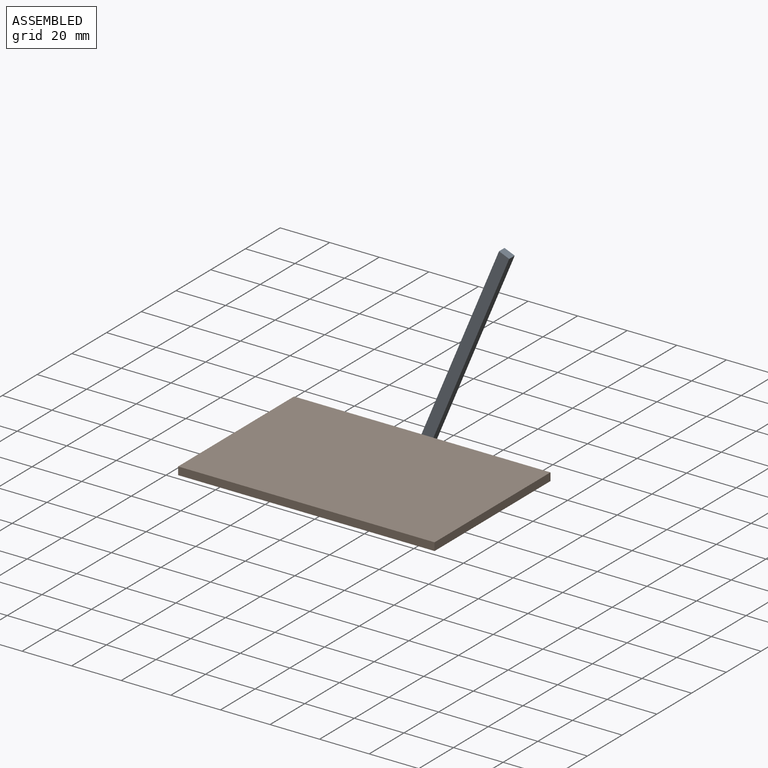
[diagram: assembled view]
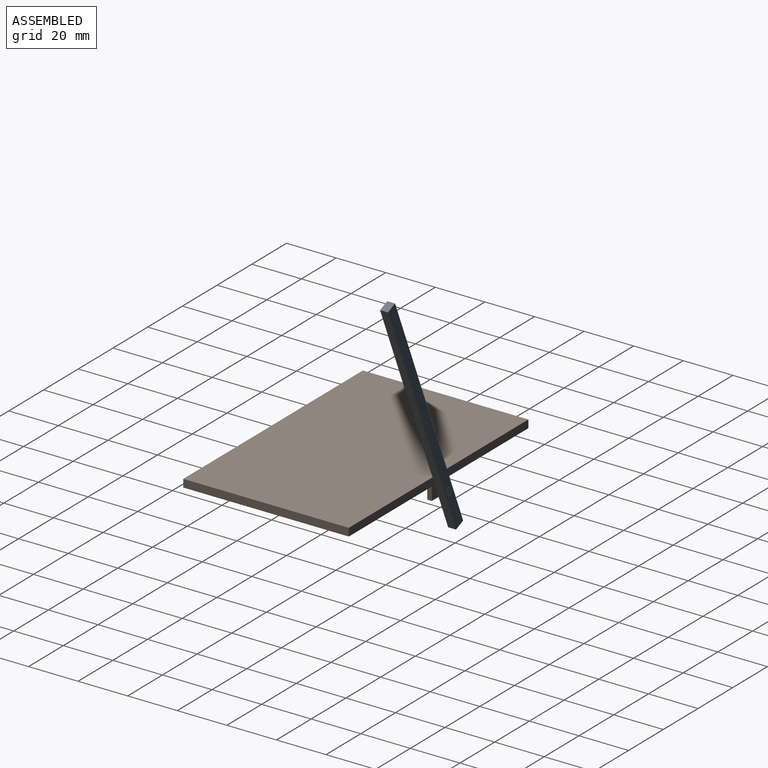
[diagram: assembled view, second angle]
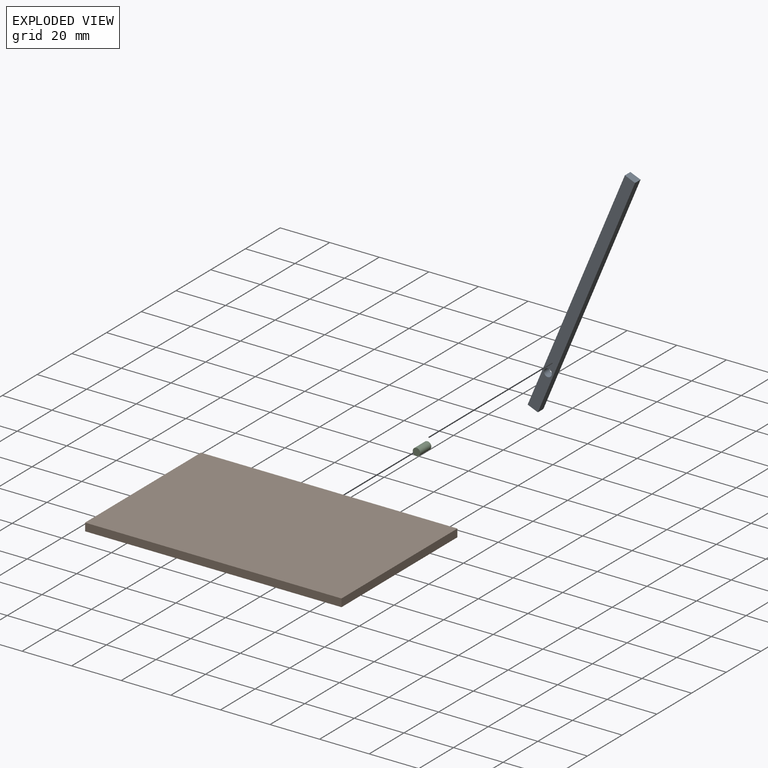
[diagram: exploded view]
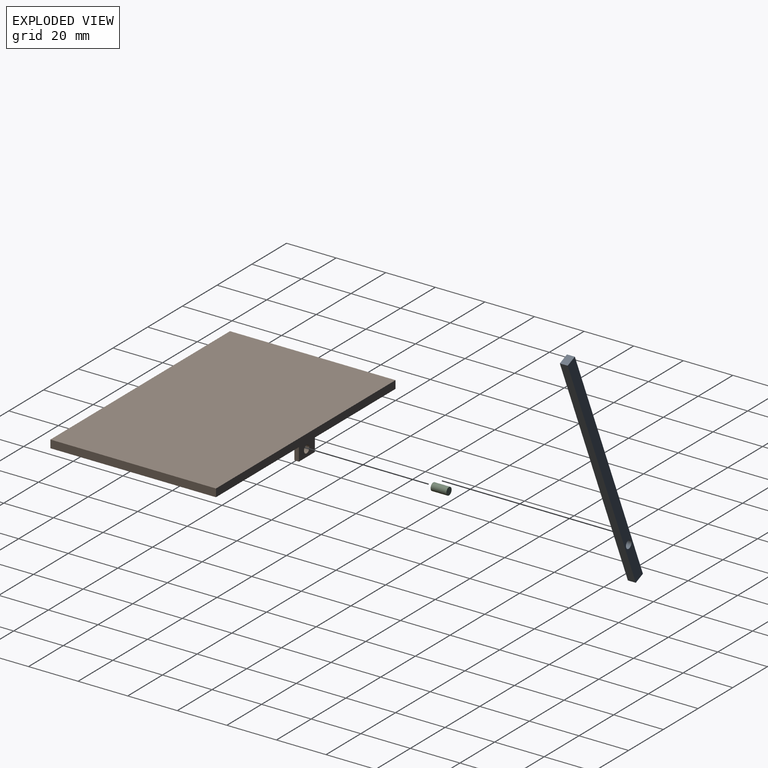
[diagram: exploded view, second angle]
ASSEMBLY  parts=3 mates=2
PART A: 7 faces, bbox 4.5x3.2x101.9 mm
  f0: plane 4.45x3.18mm, normal (0,0,1), area 14.1mm2, adj f1,f3,f4,f5
  f1: plane 101.95x3.18mm, normal (-1,0,0), area 323.7mm2, adj f0,f2,f4,f5
  f2: plane 4.45x3.18mm, normal (0,0,-1), area 14.1mm2, adj f1,f3,f4,f5
  f3: plane 101.95x3.18mm, normal (1,0,0), area 323.7mm2, adj f0,f2,f4,f5
  f4: plane 101.95x4.45mm, normal (0,-1,0), area 445.8mm2, adj f0,f1,f2,f3,f6
  f5: plane 101.95x4.45mm, normal (0,1,0), area 445.8mm2, adj f0,f1,f2,f3,f6
  f6: cylinder r=1.59mm len=3.18mm, axis (0,-1,0), area 31.7mm2, adj f4,f5
PART B: 11 faces, bbox 103.4x66.8x8.5 mm
  f0: plane 103.43x8.46mm, normal (0,1,0), area 369.5mm2, adj f1,f3,f4,f5,f7,f8,f9,f10
  f1: plane 66.76x3.18mm, normal (-1,0,0), area 212mm2, adj f0,f2,f4,f5
  f2: plane 103.43x3.18mm, normal (0,-1,0), area 328.4mm2, adj f1,f3,f4,f5
  f3: plane 66.76x3.18mm, normal (1,0,0), area 212mm2, adj f0,f2,f4,f5
  f4: plane 103.43x66.76mm, normal (0,0,1), area 6905.3mm2, adj f0,f1,f2,f3
  f5: plane 103.43x66.76mm, normal (0,0,-1), area 6888.4mm2, adj f0,f1,f2,f3,f6,f7,f8
  f6: plane 9.16x5.28mm, normal (0,-1,0), area 41.1mm2, adj f5,f7,f8,f9,f10
  f7: plane 5.28x1.85mm, normal (-1,0,0), area 9.8mm2, adj f0,f5,f6,f9
  f8: plane 5.28x1.85mm, normal (1,0,0), area 9.8mm2, adj f0,f5,f6,f9
  f9: plane 9.16x1.85mm, normal (0,0,-1), area 17mm2, adj f0,f6,f7,f8
  f10: cylinder r=1.52mm len=3.05mm, axis (0,-1,0), area 17.7mm2, adj f0,f6
PART C: 3 faces, bbox 3x6.4x3 mm
  f0: cylinder r=1.52mm len=6.35mm, axis (0,1,0), area 60.8mm2, adj f1,f2
  f1: plane 3.05x3.05mm, normal (0,-1,0), area 7.3mm2, adj f0
  f2: plane 3.05x3.05mm, normal (0,1,0), area 7.3mm2, adj f0
PLACE A rot(axis=(0,1,0),22.6deg) t=(0.42,37.19,-3.32)mm
PLACE B rot(axis=(0,1,0),0deg) t=(-0.53,36.56,-3.18)mm
PLACE C rot(axis=(0,-1,0),157.4deg) t=(-1.52,37.19,-7.98)mm
MATE revolute C.f0 <-> B.f10  axis (0,1,0) through (-0.53,37.19,-5.6)mm
MATE fastened A.f6 <-> C.f0  axis (0,1,0) through (-0.53,37.19,-5.6)mm
